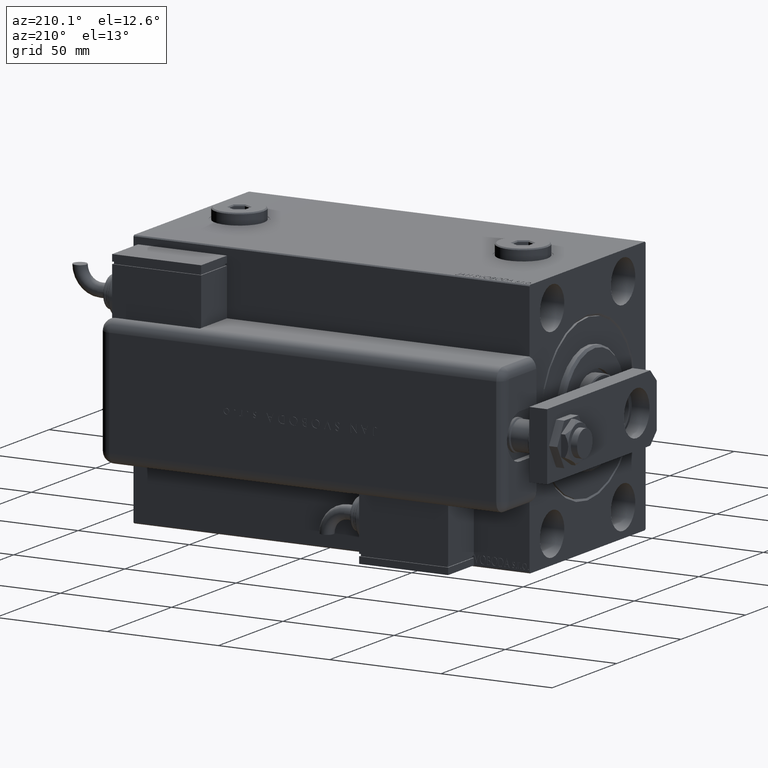
[diagram: clean part render]
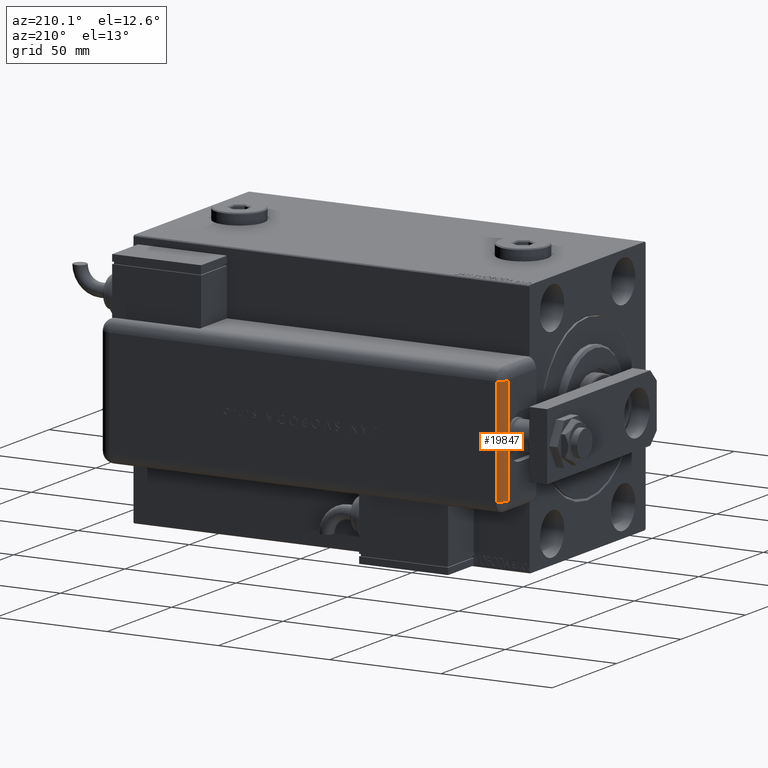
[diagram: same view with one face highlighted and labeled with its STEP entity id]
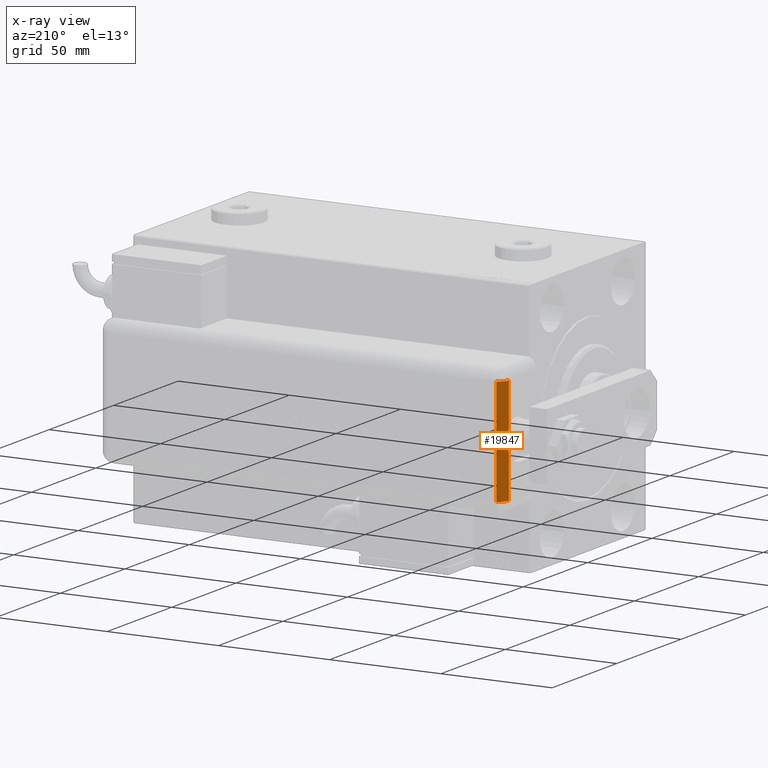
[diagram: x-ray of the same camera — body ghosted, the highlighted face saturated]
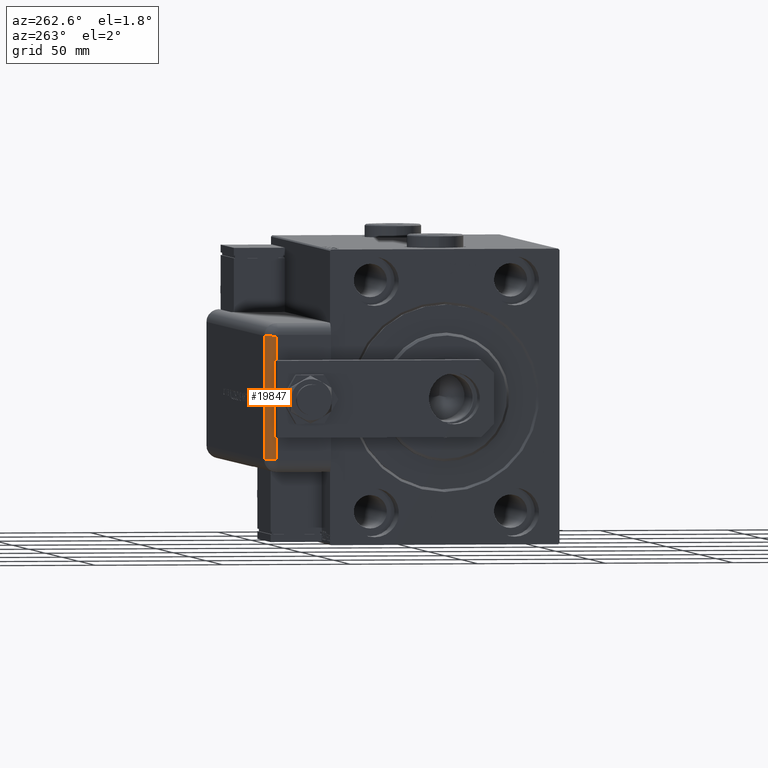
[diagram: same view with one face highlighted and labeled with its STEP entity id]
A machine part, auxiliary view. The second image highlights one B-rep face of the part: STEP entity #19847.
The next image is the same camera in x-ray: the body ghosted, the highlighted face saturated — about 0% of this face is hidden behind the body in this view.
A second angle (auxiliary view) of the same face is appended — the face is thin or edge-on in the first view.
In plain terms, the highlighted cylindrical surface (edge-blend (fillet) strip) has radius 5 mm, axis along (-0, -0, -1).
Its self-contained STEP definition (entity closure, byte-faithful):
#48 = VERTEX_POINT ( 'NONE', #22703 ) ;
#977 = DIRECTION ( 'NONE',  ( 0.000000000000000000, 0.000000000000000000, -1.000000000000000000 ) ) ;
#2297 = EDGE_CURVE ( 'NONE', #48400, #25881, #58378, .T. ) ;
#2324 = CARTESIAN_POINT ( 'NONE',  ( -24.00000000000000000, 21.21742430504414045, 182.0000000000000000 ) ) ;
#2529 = CARTESIAN_POINT ( 'NONE',  ( 0.8473105964929712464, 22.47320809119042195, 181.8400561454381830 ) ) ;
#4522 = VERTEX_POINT ( 'NONE', #40552 ) ;
#5070 = AXIS2_PLACEMENT_3D ( 'NONE', #26294, #35273, #49198 ) ;
#5637 = CARTESIAN_POINT ( 'NONE',  ( -24.00000000000000000, 21.21742430504414401, 177.0000000000000000 ) ) ;
#7767 = CARTESIAN_POINT ( 'NONE',  ( -1.704474330344697863, 22.36301991028238589, 181.8673205824228205 ) ) ;
#8730 = LINE ( 'NONE', #46097, #15340 ) ;
#10323 = ORIENTED_EDGE ( 'NONE', *, *, #41157, .F. ) ;
#11038 = EDGE_CURVE ( 'NONE', #30980, #55273, #58501, .T. ) ;
#11514 = DIRECTION ( 'NONE',  ( 0.000000000000000000, 0.000000000000000000, 1.000000000000000000 ) ) ;
#12397 = CARTESIAN_POINT ( 'NONE',  ( -4.147182090953423383, 21.64034658395929966, 181.9999999999999432 ) ) ;
#14645 = ORIENTED_EDGE ( 'NONE', *, *, #34190, .T. ) ;
#15235 = DIRECTION ( 'NONE',  ( -1.000000000000000000, 0.000000000000000000, -0.000000000000000000 ) ) ;
#15340 = VECTOR ( 'NONE', #45471, 1000.000000000000000 ) ;
#16126 = FACE_OUTER_BOUND ( 'NONE', #41501, .T. ) ;
#17103 = EDGE_CURVE ( 'NONE', #48400, #48, #8730, .T. ) ;
#17318 = CARTESIAN_POINT ( 'NONE',  ( -2.126976179448857973, 22.28041711506194744, 181.8869335919387993 ) ) ;
#19668 = CIRCLE ( 'NONE', #30550, 5.000000000000004441 ) ;
#19838 = CYLINDRICAL_SURFACE ( 'NONE', #35066, 5.000000000000004441 ) ;
#19847 = ADVANCED_FACE ( 'NONE', ( #16126 ), #19838, .T. ) ;
#21035 = CARTESIAN_POINT ( 'NONE',  ( 4.147246859832670829, 21.64031018049893262, 182.0000000000000568 ) ) ;
#22703 = CARTESIAN_POINT ( 'NONE',  ( -24.00000000000000000, 25.79999999999998295, 179.0000000000000000 ) ) ;
#24093 = B_SPLINE_CURVE_WITH_KNOTS ( 'NONE', 3,
 ( #35853, #21035, #40497, #44835, #54726, #2529, #39884, #53808, #59362, #7767, #17318, #30296, #12397, #26565 ),
 .UNSPECIFIED., .F., .F.,
 ( 4, 2, 2, 2, 2, 2, 4 ),
 ( 0.000000000000000000, 0.002552242785223138386, 0.003828364177834708230, 0.005104485570446278507, 0.006380606963057846616, 0.007656728355669416460, 0.01020897114089255875 ),
 .UNSPECIFIED. ) ;
#24440 = DIRECTION ( 'NONE',  ( 1.000000000000000000, 0.000000000000000000, 0.000000000000000000 ) ) ;
#25881 = VERTEX_POINT ( 'NONE', #27733 ) ;
#26294 = CARTESIAN_POINT ( 'NONE',  ( 24.00000000000000000, 21.21742430504414401, 177.0000000000000000 ) ) ;
#26565 = CARTESIAN_POINT ( 'NONE',  ( -4.899643580265686360, 21.21742430504414045, 182.0000000000000000 ) ) ;
#26609 = ORIENTED_EDGE ( 'NONE', *, *, #17103, .T. ) ;
#27232 = VECTOR ( 'NONE', #49585, 1000.000000000000000 ) ;
#27694 = CARTESIAN_POINT ( 'NONE',  ( -24.00000000000000000, 21.21742430504414045, 182.0000000000000000 ) ) ;
#27733 = CARTESIAN_POINT ( 'NONE',  ( 24.00000000000000000, 21.21742430504414045, 182.0000000000000000 ) ) ;
#27915 = VECTOR ( 'NONE', #15235, 1000.000000000000000 ) ;
#29703 = DIRECTION ( 'NONE',  ( -1.000000000000000000, 0.000000000000000000, 0.000000000000000000 ) ) ;
#30090 = LINE ( 'NONE', #2324, #27232 ) ;
#30296 = CARTESIAN_POINT ( 'NONE',  ( -3.360120651465719810, 21.95684709623621700, 181.9499038900309245 ) ) ;
#30550 = AXIS2_PLACEMENT_3D ( 'NONE', #5637, #24440, #977 ) ;
#30980 = VERTEX_POINT ( 'NONE', #57153 ) ;
#34190 = EDGE_CURVE ( 'NONE', #48, #55273, #19668, .T. ) ;
#35066 = AXIS2_PLACEMENT_3D ( 'NONE', #53834, #29703, #11514 ) ;
#35273 = DIRECTION ( 'NONE',  ( 1.000000000000000000, 0.000000000000000000, -0.000000000000000000 ) ) ;
#35853 = CARTESIAN_POINT ( 'NONE',  ( 4.899643580265684584, 21.21742430504414045, 182.0000000000000000 ) ) ;
#36280 = CARTESIAN_POINT ( 'NONE',  ( 24.00000000000000000, 25.79999999999998295, 179.0000000000000000 ) ) ;
#36401 = ORIENTED_EDGE ( 'NONE', *, *, #11038, .F. ) ;
#39884 = CARTESIAN_POINT ( 'NONE',  ( 0.4227564763960075522, 22.50009467200080948, 181.8326759398338766 ) ) ;
#39931 = CARTESIAN_POINT ( 'NONE',  ( -24.00000000000000000, 21.21742430504414045, 182.0000000000000000 ) ) ;
#40497 = CARTESIAN_POINT ( 'NONE',  ( 3.358724364638089543, 21.95764543947606384, 181.9498052832645953 ) ) ;
#40552 = CARTESIAN_POINT ( 'NONE',  ( 4.899643580265684584, 21.21742430504414045, 182.0000000000000000 ) ) ;
#41157 = EDGE_CURVE ( 'NONE', #4522, #30980, #24093, .T. ) ;
#41501 = EDGE_LOOP ( 'NONE', ( #10323, #60099, #47579, #26609, #14645, #36401 ) ) ;
#44835 = CARTESIAN_POINT ( 'NONE',  ( 2.120548922004968251, 22.28188573776164105, 181.8866191559993979 ) ) ;
#45471 = DIRECTION ( 'NONE',  ( -1.000000000000000000, 0.000000000000000000, 0.000000000000000000 ) ) ;
#46097 = CARTESIAN_POINT ( 'NONE',  ( 24.00000000000000000, 25.79999999999998295, 179.0000000000000000 ) ) ;
#47579 = ORIENTED_EDGE ( 'NONE', *, *, #2297, .F. ) ;
#48400 = VERTEX_POINT ( 'NONE', #36280 ) ;
#49198 = DIRECTION ( 'NONE',  ( 0.000000000000000000, 0.000000000000000000, -1.000000000000000000 ) ) ;
#49585 = DIRECTION ( 'NONE',  ( -1.000000000000000000, 0.000000000000000000, -0.000000000000000000 ) ) ;
#53808 = CARTESIAN_POINT ( 'NONE',  ( -0.4272404019587389690, 22.49990410585946776, 181.8327265151484653 ) ) ;
#53834 = CARTESIAN_POINT ( 'NONE',  ( 24.00000000000000000, 21.21742430504414045, 177.0000000000000000 ) ) ;
#54726 = CARTESIAN_POINT ( 'NONE',  ( 1.695524554190643185, 22.36448231999430902, 181.8669697265219156 ) ) ;
#55273 = VERTEX_POINT ( 'NONE', #27694 ) ;
#57153 = CARTESIAN_POINT ( 'NONE',  ( -4.899643580265686360, 21.21742430504414045, 182.0000000000000000 ) ) ;
#58378 = CIRCLE ( 'NONE', #5070, 5.000000000000004441 ) ;
#58501 = LINE ( 'NONE', #39931, #27915 ) ;
#59161 = EDGE_CURVE ( 'NONE', #25881, #4522, #30090, .T. ) ;
#59362 = CARTESIAN_POINT ( 'NONE',  ( -0.8526831356307389420, 22.47282938210785375, 181.8401608480814957 ) ) ;
#60099 = ORIENTED_EDGE ( 'NONE', *, *, #59161, .F. ) ;